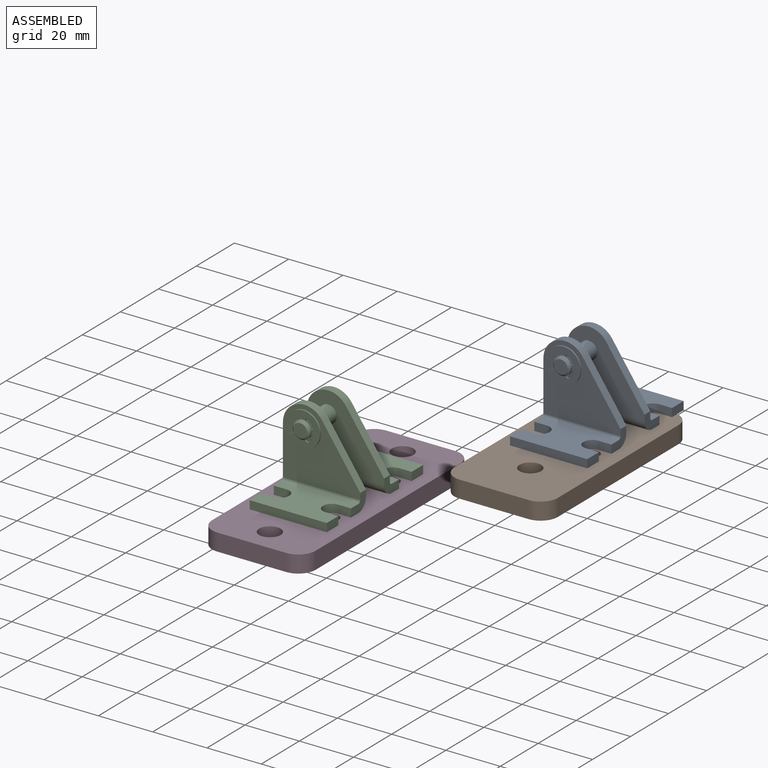
[diagram: assembled view]
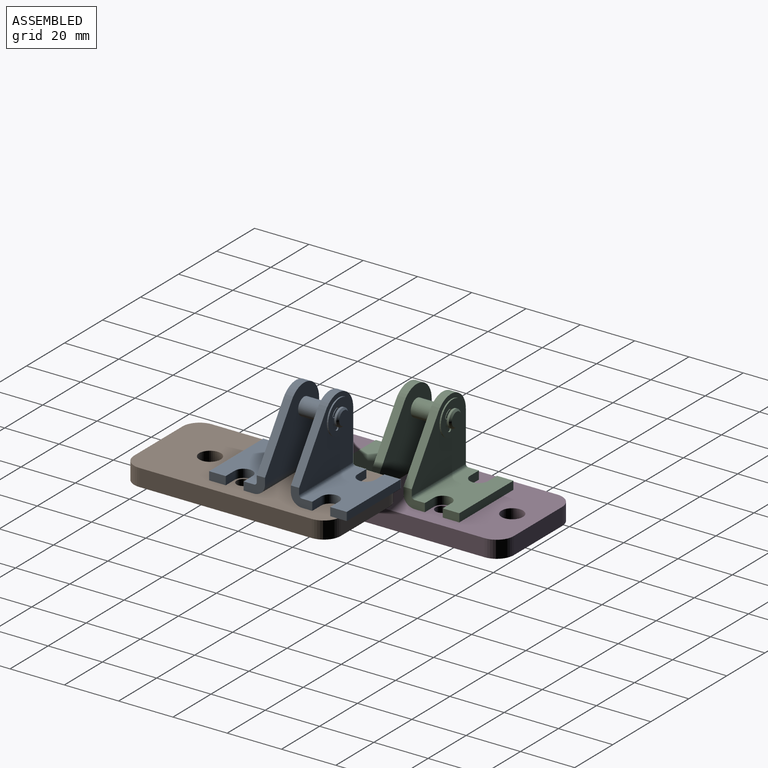
[diagram: assembled view, second angle]
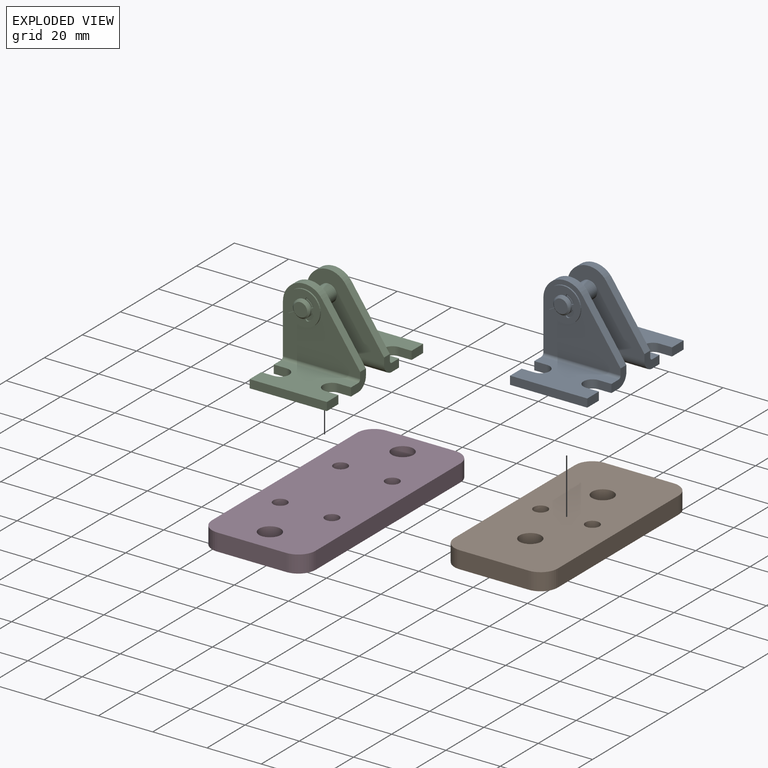
[diagram: exploded view]
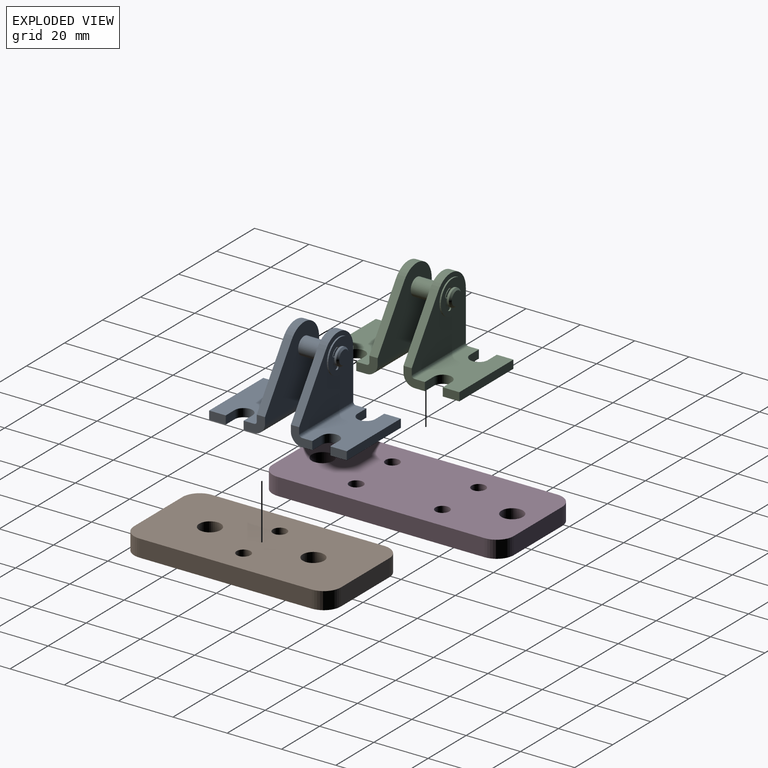
[diagram: exploded view, second angle]
ASSEMBLY  parts=4 mates=2
PART A: 95 faces, bbox 28.4x30.2x50.7 mm
  f0: plane 3.18x1.09mm, normal (0,0,1), area 2.2mm2, adj f2,f35,f82,f84
  f1: plane 2.44x2.44mm, normal (0,0,1), area 2.2mm2, adj f3,f35,f85,f89
  f2: cylinder r=2.41mm len=2.41mm, axis (0,0,1), area 1.3mm2, adj f0,f4,f82,f84
  f3: cylinder r=2.41mm len=1.71mm, axis (0,0,1), area 1.3mm2, adj f1,f5,f85,f89
  f4: plane 3.18x1.09mm, normal (0,0,-1), area 2.2mm2, adj f2,f39,f82,f84
  f5: plane 2.44x2.44mm, normal (0,0,-1), area 2.2mm2, adj f3,f39,f85,f89
  f6: plane 2.44x2.44mm, normal (0,0,1), area 2.2mm2, adj f9,f63,f67,f71
  f7: plane 2.44x2.44mm, normal (0,0,1), area 2.2mm2, adj f10,f63,f72,f76
  f8: plane 3.18x1.09mm, normal (0,0,1), area 2.2mm2, adj f11,f63,f77,f79
  f9: cylinder r=2.41mm len=1.71mm, axis (0,0,1), area 1.3mm2, adj f6,f12,f67,f71
  f10: cylinder r=2.41mm len=1.71mm, axis (0,0,1), area 1.3mm2, adj f7,f13,f72,f76
  f11: cylinder r=2.41mm len=2.41mm, axis (0,0,1), area 1.3mm2, adj f8,f14,f77,f79
  f12: plane 2.44x2.44mm, normal (0,0,-1), area 2.2mm2, adj f9,f64,f67,f71
  f13: plane 2.44x2.44mm, normal (0,0,-1), area 2.2mm2, adj f10,f64,f72,f76
  f14: plane 3.18x1.09mm, normal (0,0,-1), area 2.2mm2, adj f11,f64,f77,f79
  f15: cylinder r=3.17mm len=9.53mm, axis (0,0,1), area 190mm2, adj f19,f45
  f16: plane 7.87x6.35mm, normal (1,0,0), area 30.7mm2, adj f18,f19,f22,f24,f25,f31,f33,f34
  f17: plane 6.1x3.05mm, normal (-1,0,0), area 18.6mm2, adj f22,f25,f26,f28
  f18: plane 28.45x26.16mm, normal (0,0,1), area 500.5mm2, adj f16,f20,f21,f24,f33,f35
  f19: plane 28.45x26.16mm, normal (0,0,-1), area 500.5mm2, adj f15,f16,f20,f21,f24,f34
  f20: cylinder r=7.87mm len=14.36mm, axis (0,0,-1), area 60.9mm2, adj f18,f19,f21,f24
  f21: plane 22.35x7.87mm, normal (-1,0,0), area 79.5mm2, adj f18,f19,f20,f22,f25,f29,f33,f34
  f22: plane 28.45x16.51mm, normal (0,-1,0), area 373.4mm2, adj f16,f17,f21,f23,f26,f27,f28,f29
  f23: plane 6.1x3.05mm, normal (1,0,0), area 18.6mm2, adj f22,f25,f26,f32
  f24: plane 20.47x14.09mm, normal (0.82,0.57,0), area 75.7mm2, adj f16,f18,f19,f20
  f25: plane 28.45x16.51mm, normal (0,1,0), area 373.4mm2, adj f16,f17,f21,f23,f26,f27,f28,f29
  f26: plane 28.45x3.05mm, normal (0,0,1), area 86.7mm2, adj f17,f22,f23,f25
  f27: cylinder r=3.3mm len=6.6mm, axis (0,1,0), area 31.6mm2, adj f22,f25,f28,f29
  f28: plane 4.7x3.05mm, normal (0,0,-1), area 14.3mm2, adj f17,f22,f25,f27
  f29: plane 4.7x3.05mm, normal (0,0,1), area 14.3mm2, adj f21,f22,f25,f27
  f30: cylinder r=3.3mm len=6.6mm, axis (0,1,0), area 31.6mm2, adj f22,f25,f31,f32
  f31: plane 4.7x3.05mm, normal (0,0,1), area 14.3mm2, adj f16,f22,f25,f30
  f32: plane 4.7x3.05mm, normal (0,0,-1), area 14.3mm2, adj f22,f23,f25,f30
  f33: cylinder r=1.02mm len=28.45mm, axis (-1,0,0), area 45.4mm2, adj f16,f18,f21,f25
  f34: cylinder r=4.06mm len=28.45mm, axis (1,0,0), area 181.6mm2, adj f16,f19,f21,f22
  f35: cylinder r=3.17mm len=6.35mm, axis (0,0,1), area 4.1mm2, adj f0,f1,f18,f36,f80
  f36: plane 2.44x2.44mm, normal (0,0,1), area 2.2mm2, adj f35,f37,f90,f94
  f37: cylinder r=2.41mm len=1.71mm, axis (0,0,1), area 1.3mm2, adj f36,f38,f90,f94
  f38: plane 2.44x2.44mm, normal (0,0,-1), area 2.2mm2, adj f37,f39,f90,f94
  f39: cylinder r=3.17mm len=6.35mm, axis (0,0,1), area 15.2mm2, adj f4,f5,f38,f40,f81
  f40: cone r=3.17mm half-angle=45deg, axis (0,0,-1), area 16.1mm2, adj f39,f41
  f41: plane 5.08x5.08mm, normal (0,0,1), area 20.3mm2, adj f40
  f42: plane 7.87x6.35mm, normal (1,0,0), area 30.7mm2, adj f44,f45,f48,f50,f51,f57,f59,f60
  f43: plane 6.1x3.05mm, normal (-1,0,0), area 18.6mm2, adj f48,f51,f52,f54
  f44: plane 28.45x26.16mm, normal (0,0,-1), area 500.5mm2, adj f42,f46,f47,f50,f59,f64
  f45: plane 28.45x26.16mm, normal (0,0,1), area 500.5mm2, adj f15,f42,f46,f47,f50,f60
  f46: cylinder r=7.87mm len=14.36mm, axis (0,0,1), area 60.9mm2, adj f44,f45,f47,f50
  f47: plane 22.35x7.87mm, normal (-1,0,0), area 79.5mm2, adj f44,f45,f46,f48,f51,f55,f59,f60
  f48: plane 28.45x16.51mm, normal (0,-1,0), area 373.4mm2, adj f42,f43,f47,f49,f52,f53,f54,f55
  f49: plane 6.1x3.05mm, normal (1,0,0), area 18.6mm2, adj f48,f51,f52,f58
  f50: plane 20.47x14.09mm, normal (0.82,0.57,0), area 75.7mm2, adj f42,f44,f45,f46
  f51: plane 28.45x16.51mm, normal (0,1,0), area 373.4mm2, adj f42,f43,f47,f49,f52,f53,f54,f55
  f52: plane 28.45x3.05mm, normal (0,0,-1), area 86.7mm2, adj f43,f48,f49,f51
  f53: cylinder r=3.3mm len=6.6mm, axis (0,1,0), area 31.6mm2, adj f48,f51,f54,f55
  f54: plane 4.7x3.05mm, normal (0,0,1), area 14.3mm2, adj f43,f48,f51,f53
  f55: plane 4.7x3.05mm, normal (0,0,-1), area 14.3mm2, adj f47,f48,f51,f53
  f56: cylinder r=3.3mm len=6.6mm, axis (0,1,0), area 31.6mm2, adj f48,f51,f57,f58
  f57: plane 4.7x3.05mm, normal (0,0,-1), area 14.3mm2, adj f42,f48,f51,f56
  f58: plane 4.7x3.05mm, normal (0,0,1), area 14.3mm2, adj f48,f49,f51,f56
  f59: cylinder r=1.02mm len=28.45mm, axis (-1,0,0), area 45.4mm2, adj f42,f44,f47,f51
  f60: cylinder r=4.06mm len=28.45mm, axis (1,0,0), area 181.6mm2, adj f42,f45,f47,f48
  f61: plane 5.08x5.08mm, normal (0,0,-1), area 20.3mm2, adj f62
  f62: cone r=2.54mm half-angle=45deg, axis (0,0,1), area 16.1mm2, adj f61,f63
  f63: cylinder r=3.17mm len=6.35mm, axis (0,0,1), area 15.2mm2, adj f6,f7,f8,f62,f65
  f64: cylinder r=3.17mm len=6.35mm, axis (0,0,1), area 4.1mm2, adj f12,f13,f14,f44,f66
  f65: plane 12.6x11.75mm, normal (0,0,-1), area 68.9mm2, adj f63,f67,f68,f69,f70,f71,f72,f73
  f66: plane 12.6x11.75mm, normal (0,0,1), area 68.9mm2, adj f64,f67,f68,f69,f70,f71,f72,f73
  f67: plane 1.06x0.51mm, normal (0.97,0.26,0), area 0.6mm2, adj f6,f9,f12,f65,f66,f68
  f68: cylinder r=0.76mm len=1.09mm, axis (0,0,1), area 0.7mm2, adj f65,f66,f67,f69
  f69: cylinder r=4.36mm len=1.88mm, axis (0,0,1), area 1.4mm2, adj f65,f66,f68,f70
  f70: cylinder r=0.76mm len=1.09mm, axis (0,0,1), area 0.7mm2, adj f65,f66,f69,f71
  f71: plane 1.06x0.51mm, normal (-0.26,-0.97,0), area 0.6mm2, adj f6,f9,f12,f65,f66,f70
  f72: plane 1.06x0.51mm, normal (-0.26,0.97,0), area 0.6mm2, adj f7,f10,f13,f65,f66,f73
  f73: cylinder r=0.76mm len=1.09mm, axis (0,0,1), area 0.7mm2, adj f65,f66,f72,f74
  f74: cylinder r=4.36mm len=1.88mm, axis (0,0,1), area 1.4mm2, adj f65,f66,f73,f75
  f75: cylinder r=0.76mm len=1.09mm, axis (0,0,1), area 0.7mm2, adj f65,f66,f74,f76
  f76: plane 1.06x0.51mm, normal (0.97,-0.26,0), area 0.6mm2, adj f7,f10,f13,f65,f66,f75
  f77: plane 3.37x1.94mm, normal (-0.5,-0.87,0), area 2mm2, adj f8,f11,f14,f65,f66,f78
  f78: cylinder r=6.3mm len=12.6mm, axis (0,0,1), area 16.8mm2, adj f65,f66,f77,f79
  f79: plane 3.37x1.94mm, normal (-0.5,0.87,0), area 2mm2, adj f8,f11,f14,f65,f66,f78
  f80: plane 12.6x11.75mm, normal (0,0,-1), area 68.9mm2, adj f35,f82,f83,f84,f85,f86,f87,f88
  f81: plane 12.6x11.75mm, normal (0,0,1), area 68.9mm2, adj f39,f82,f83,f84,f85,f86,f87,f88
  f82: plane 3.37x1.94mm, normal (-0.5,0.87,0), area 2mm2, adj f0,f2,f4,f80,f81,f83
  f83: cylinder r=6.3mm len=12.6mm, axis (0,0,-1), area 16.8mm2, adj f80,f81,f82,f84
  f84: plane 3.37x1.94mm, normal (-0.5,-0.87,0), area 2mm2, adj f0,f2,f4,f80,f81,f83
  f85: plane 1.06x0.51mm, normal (0.97,-0.26,0), area 0.6mm2, adj f1,f3,f5,f80,f81,f86
  f86: cylinder r=0.76mm len=1.09mm, axis (0,0,-1), area 0.7mm2, adj f80,f81,f85,f87
  f87: cylinder r=4.36mm len=1.88mm, axis (0,0,-1), area 1.4mm2, adj f80,f81,f86,f88
  f88: cylinder r=0.76mm len=1.09mm, axis (0,0,-1), area 0.7mm2, adj f80,f81,f87,f89
  f89: plane 1.06x0.51mm, normal (-0.26,0.97,0), area 0.6mm2, adj f1,f3,f5,f80,f81,f88
  f90: plane 1.06x0.51mm, normal (-0.26,-0.97,0), area 0.6mm2, adj f36,f37,f38,f80,f81,f91
  f91: cylinder r=0.76mm len=1.09mm, axis (0,0,-1), area 0.7mm2, adj f80,f81,f90,f92
  f92: cylinder r=4.36mm len=1.88mm, axis (0,0,-1), area 1.4mm2, adj f80,f81,f91,f93
  f93: cylinder r=0.76mm len=1.09mm, axis (0,0,-1), area 0.7mm2, adj f80,f81,f92,f94
  f94: plane 1.06x0.51mm, normal (0.97,0.26,0), area 0.6mm2, adj f36,f37,f38,f80,f81,f93
PART B: 14 faces, bbox 76.2x38.1x6.4 mm
  f0: plane 25.4x6.35mm, normal (1,0,0), area 161.3mm2, adj f1,f7,f8,f9
  f1: cylinder r=6.35mm len=6.35mm, axis (0,0,-1), area 63.3mm2, adj f0,f2,f8,f9
  f2: plane 63.5x6.35mm, normal (0,1,0), area 403.2mm2, adj f1,f3,f8,f9
  f3: cylinder r=6.35mm len=6.35mm, axis (0,0,-1), area 63.3mm2, adj f2,f4,f8,f9
  f4: plane 25.4x6.35mm, normal (-1,0,0), area 161.3mm2, adj f3,f5,f8,f9
  f5: cylinder r=6.35mm len=6.35mm, axis (0,0,-1), area 63.3mm2, adj f4,f6,f8,f9
  f6: plane 63.5x6.35mm, normal (0,-1,0), area 403.2mm2, adj f5,f7,f8,f9
  f7: cylinder r=6.35mm len=6.35mm, axis (0,0,-1), area 63.3mm2, adj f0,f6,f8,f9
  f8: plane 76.2x38.1mm, normal (0,0,1), area 2728.7mm2, adj f0,f1,f2,f3,f4,f5,f6,f7
  f9: plane 76.2x38.1mm, normal (0,0,-1), area 2728.7mm2, adj f0,f1,f2,f3,f4,f5,f6,f7
  f10: cylinder r=3.97mm len=7.94mm, axis (0,0,1), area 158.3mm2, adj f8,f9
  f11: cylinder r=3.97mm len=7.94mm, axis (0,0,1), area 158.3mm2, adj f8,f9
  f12: cylinder r=2.55mm len=6.35mm, axis (0,0,1), area 101.8mm2, adj f8,f9
  f13: cylinder r=2.55mm len=6.35mm, axis (0,0,1), area 101.8mm2, adj f8,f9
PART C: same geometry as A
PART D: 16 faces, bbox 88.9x38.1x6.4 mm
  f0: plane 25.4x6.35mm, normal (1,0,0), area 161.3mm2, adj f1,f7,f8,f9
  f1: cylinder r=6.35mm len=6.35mm, axis (0,0,-1), area 63.3mm2, adj f0,f2,f8,f9
  f2: plane 76.2x6.35mm, normal (0,1,0), area 483.9mm2, adj f1,f3,f8,f9
  f3: cylinder r=6.35mm len=6.35mm, axis (0,0,-1), area 63.3mm2, adj f2,f4,f8,f9
  f4: plane 25.4x6.35mm, normal (-1,0,0), area 161.3mm2, adj f3,f5,f8,f9
  f5: cylinder r=6.35mm len=6.35mm, axis (0,0,-1), area 63.3mm2, adj f4,f6,f8,f9
  f6: plane 76.2x6.35mm, normal (0,-1,0), area 483.9mm2, adj f5,f7,f8,f9
  f7: cylinder r=6.35mm len=6.35mm, axis (0,0,-1), area 63.3mm2, adj f0,f6,f8,f9
  f8: plane 88.9x38.1mm, normal (0,0,1), area 3171.6mm2, adj f0,f1,f2,f3,f4,f5,f6,f7
  f9: plane 88.9x38.1mm, normal (0,0,-1), area 3171.6mm2, adj f0,f1,f2,f3,f4,f5,f6,f7
  f10: cylinder r=3.97mm len=7.94mm, axis (0,0,-1), area 158.3mm2, adj f8,f9
  f11: cylinder r=3.97mm len=7.94mm, axis (0,0,-1), area 158.3mm2, adj f8,f9
  f12: cylinder r=2.55mm len=6.35mm, axis (0,0,-1), area 101.8mm2, adj f8,f9
  f13: cylinder r=2.55mm len=6.35mm, axis (0,0,-1), area 101.8mm2, adj f8,f9
  f14: cylinder r=2.55mm len=6.35mm, axis (0,0,-1), area 101.8mm2, adj f8,f9
  f15: cylinder r=2.55mm len=6.35mm, axis (0,0,-1), area 101.8mm2, adj f8,f9
PLACE A rot(axis=(1,0,0),90deg) t=(75.48,9.16,33.33)mm
PLACE B rot(axis=(0,0,1),90deg) t=(100.88,-40.12,4.63)mm
PLACE C rot(axis=(1,0,0),90deg) t=(-8.38,-8.09,-3.77)mm
PLACE D rot(axis=(0,0,1),90deg) t=(17.02,-47.84,-32.47)mm
MATE planar C.f22 <-> D.f8  axis (0,0,-1) through (-2.03,-20.7,-26.12)mm
MATE planar A.f22 <-> B.f11  axis (0,0,-1) through (81.83,-3.46,10.98)mm
